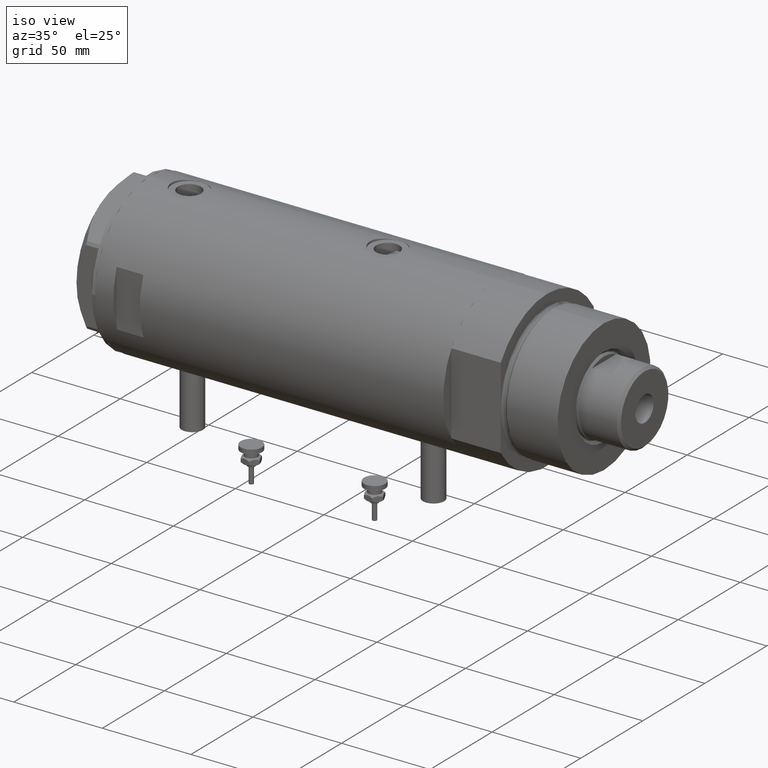
[diagram: clean part render]
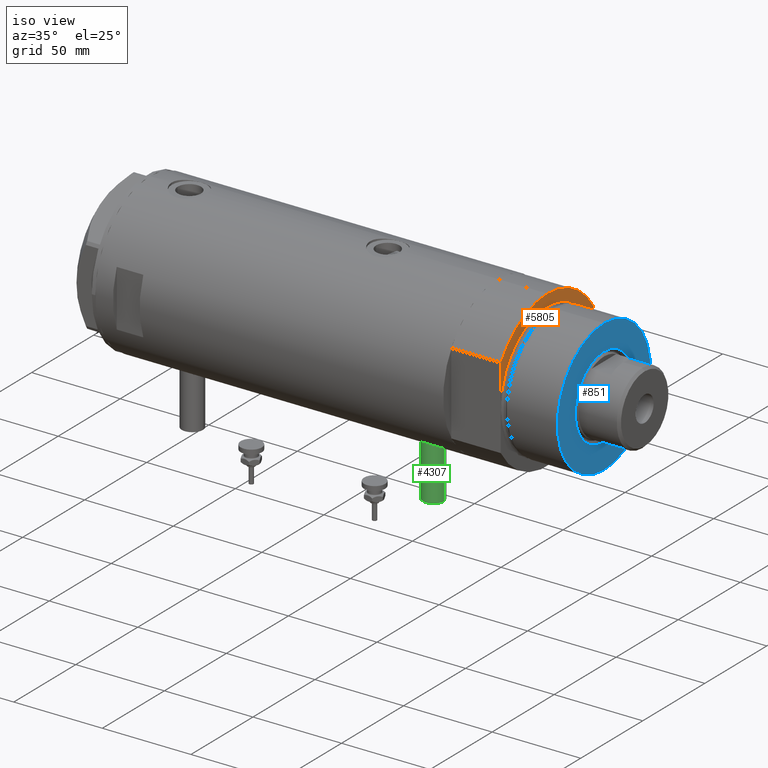
[diagram: same view with three faces highlighted in distinct colors, each labeled with its STEP entity id]
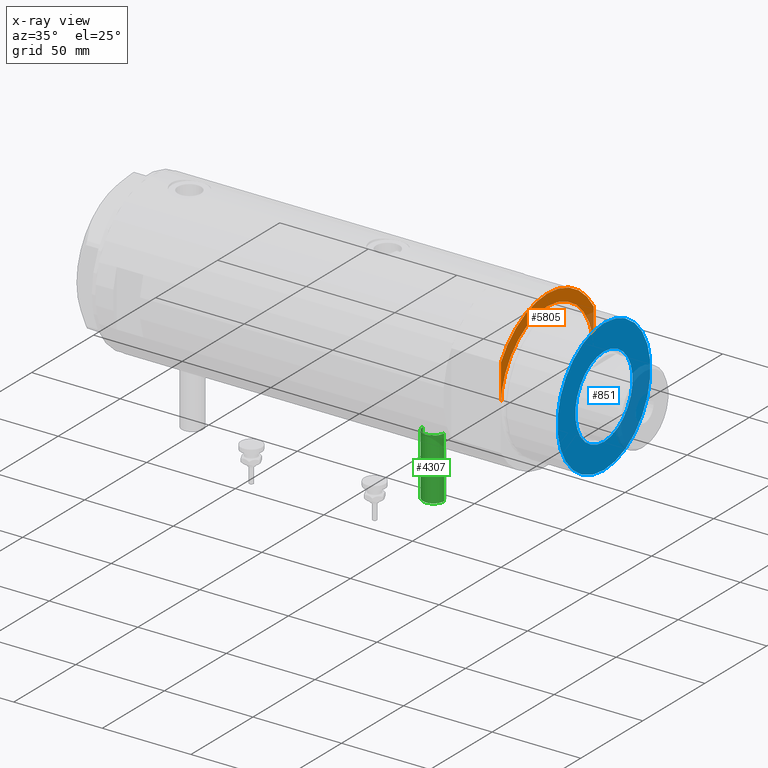
[diagram: x-ray of the same camera — body ghosted, the three highlighted faces saturated]
A machine part, iso view with three faces highlighted in distinct colors.
The next image is the same camera in x-ray (body ghosted, the three faces saturated) — at least one of them is partly hidden behind the body in this view.
Their STEP definitions:

[orange] entity #5805 — the highlighted planar face has unit normal (1, 0, -0).
#17 = CIRCLE ( 'NONE', #5366, 37.50000000000000000 ) ;
#192 = EDGE_CURVE ( 'NONE', #2227, #2510, #3287, .T. ) ;
#364 = ORIENTED_EDGE ( 'NONE', *, *, #192, .T. ) ;
#544 = LINE ( 'NONE', #1939, #1082 ) ;
#583 = CARTESIAN_POINT ( 'NONE',  ( -23.01629857296780557, -37.50000000000000000, 27.89999999999999858 ) ) ;
#598 = CARTESIAN_POINT ( 'NONE',  ( 0.000000000000000000, -37.50000000000000000, 27.89999999999999858 ) ) ;
#677 = DIRECTION ( 'NONE',  ( 0.000000000000000000, 0.000000000000000000, 1.000000000000000000 ) ) ;
#733 = ORIENTED_EDGE ( 'NONE', *, *, #2639, .T. ) ;
#774 = CARTESIAN_POINT ( 'NONE',  ( -44.00000000000000000, 0.000000000000000000, 27.89999999999999858 ) ) ;
#795 = PLANE ( 'NONE',  #5092 ) ;
#839 = CARTESIAN_POINT ( 'NONE',  ( -37.50000000000000000, 4.592425496802574367E-15, 27.89999999999999858 ) ) ;
#845 = EDGE_LOOP ( 'NONE', ( #1438, #733, #5381, #1055, #4642, #364 ) ) ;
#871 = VERTEX_POINT ( 'NONE', #2693 ) ;
#962 = CARTESIAN_POINT ( 'NONE',  ( 0.000000000000000000, 0.000000000000000000, 27.89999999999999858 ) ) ;
#1055 = ORIENTED_EDGE ( 'NONE', *, *, #3764, .F. ) ;
#1082 = VECTOR ( 'NONE', #3348, 1000.000000000000000 ) ;
#1272 = VECTOR ( 'NONE', #2434, 1000.000000000000000 ) ;
#1438 = ORIENTED_EDGE ( 'NONE', *, *, #1482, .F. ) ;
#1482 = EDGE_CURVE ( 'NONE', #4817, #2510, #4346, .T. ) ;
#1648 = DIRECTION ( 'NONE',  ( 1.000000000000000000, 0.000000000000000000, -0.000000000000000000 ) ) ;
#1710 = CARTESIAN_POINT ( 'NONE',  ( 0.000000000000000000, 0.000000000000000000, 27.89999999999999858 ) ) ;
#1939 = CARTESIAN_POINT ( 'NONE',  ( -23.01629857296780557, 37.50000000000000000, 27.89999999999999858 ) ) ;
#1950 = DIRECTION ( 'NONE',  ( -0.000000000000000000, -0.000000000000000000, -1.000000000000000000 ) ) ;
#2125 = DIRECTION ( 'NONE',  ( 1.000000000000000000, 0.000000000000000000, 0.000000000000000000 ) ) ;
#2227 = VERTEX_POINT ( 'NONE', #774 ) ;
#2249 = CARTESIAN_POINT ( 'NONE',  ( -23.01629857296780557, -37.50000000000000000, 27.89999999999999858 ) ) ;
#2432 = AXIS2_PLACEMENT_3D ( 'NONE', #3753, #1950, #3819 ) ;
#2434 = DIRECTION ( 'NONE',  ( -1.000000000000000000, -0.000000000000000000, -0.000000000000000000 ) ) ;
#2455 = EDGE_CURVE ( 'NONE', #871, #2227, #3199, .T. ) ;
#2510 = VERTEX_POINT ( 'NONE', #2249 ) ;
#2639 = EDGE_CURVE ( 'NONE', #4817, #4805, #5051, .T. ) ;
#2693 = CARTESIAN_POINT ( 'NONE',  ( -23.01629857296780557, 37.50000000000000000, 27.89999999999999858 ) ) ;
#2849 = VERTEX_POINT ( 'NONE', #5009 ) ;
#3106 = AXIS2_PLACEMENT_3D ( 'NONE', #5962, #3573, #4547 ) ;
#3199 = CIRCLE ( 'NONE', #3106, 44.00000000000000000 ) ;
#3287 = CIRCLE ( 'NONE', #3676, 44.00000000000000000 ) ;
#3348 = DIRECTION ( 'NONE',  ( 1.000000000000000000, 0.000000000000000000, 0.000000000000000000 ) ) ;
#3573 = DIRECTION ( 'NONE',  ( 0.000000000000000000, 0.000000000000000000, 1.000000000000000000 ) ) ;
#3590 = EDGE_CURVE ( 'NONE', #4805, #2849, #17, .T. ) ;
#3676 = AXIS2_PLACEMENT_3D ( 'NONE', #962, #5650, #5071 ) ;
#3753 = CARTESIAN_POINT ( 'NONE',  ( 0.000000000000000000, 0.000000000000000000, 27.89999999999999858 ) ) ;
#3764 = EDGE_CURVE ( 'NONE', #871, #2849, #544, .T. ) ;
#3819 = DIRECTION ( 'NONE',  ( 1.000000000000000000, 0.000000000000000000, 0.000000000000000000 ) ) ;
#4346 = LINE ( 'NONE', #583, #1272 ) ;
#4547 = DIRECTION ( 'NONE',  ( 1.000000000000000000, 0.000000000000000000, 0.000000000000000000 ) ) ;
#4642 = ORIENTED_EDGE ( 'NONE', *, *, #2455, .T. ) ;
#4805 = VERTEX_POINT ( 'NONE', #839 ) ;
#4817 = VERTEX_POINT ( 'NONE', #598 ) ;
#5009 = CARTESIAN_POINT ( 'NONE',  ( 0.000000000000000000, 37.50000000000000000, 27.89999999999999858 ) ) ;
#5051 = CIRCLE ( 'NONE', #2432, 37.50000000000000000 ) ;
#5071 = DIRECTION ( 'NONE',  ( 1.000000000000000000, 0.000000000000000000, 0.000000000000000000 ) ) ;
#5092 = AXIS2_PLACEMENT_3D ( 'NONE', #1710, #677, #1648 ) ;
#5366 = AXIS2_PLACEMENT_3D ( 'NONE', #5867, #5414, #2125 ) ;
#5381 = ORIENTED_EDGE ( 'NONE', *, *, #3590, .T. ) ;
#5389 = FACE_OUTER_BOUND ( 'NONE', #845, .T. ) ;
#5414 = DIRECTION ( 'NONE',  ( -0.000000000000000000, -0.000000000000000000, -1.000000000000000000 ) ) ;
#5650 = DIRECTION ( 'NONE',  ( 0.000000000000000000, 0.000000000000000000, 1.000000000000000000 ) ) ;
#5805 = ADVANCED_FACE ( 'NONE', ( #5389 ), #795, .T. ) ;
#5867 = CARTESIAN_POINT ( 'NONE',  ( 0.000000000000000000, 0.000000000000000000, 27.89999999999999858 ) ) ;
#5962 = CARTESIAN_POINT ( 'NONE',  ( 0.000000000000000000, 0.000000000000000000, 27.89999999999999858 ) ) ;

[blue] entity #851 — the highlighted planar face has unit normal (1, 0, -0).
#259 = CARTESIAN_POINT ( 'NONE',  ( 37.50000000000000711, 4.592425496802575156E-15, 59.89999999999999147 ) ) ;
#474 = DIRECTION ( 'NONE',  ( 1.000000000000000000, 0.000000000000000000, 0.000000000000000000 ) ) ;
#592 = DIRECTION ( 'NONE',  ( 1.000000000000000000, 0.000000000000000000, 0.000000000000000000 ) ) ;
#664 = CARTESIAN_POINT ( 'NONE',  ( 0.000000000000000000, 0.000000000000000000, 59.89999999999999147 ) ) ;
#747 = FACE_BOUND ( 'NONE', #4608, .T. ) ;
#851 = ADVANCED_FACE ( 'NONE', ( #747, #5884 ), #5814, .T. ) ;
#995 = CIRCLE ( 'NONE', #3902, 23.05000000000002913 ) ;
#1171 = CIRCLE ( 'NONE', #5354, 37.50000000000000711 ) ;
#1339 = CARTESIAN_POINT ( 'NONE',  ( 0.000000000000000000, 0.000000000000000000, 59.89999999999999147 ) ) ;
#1368 = CARTESIAN_POINT ( 'NONE',  ( -37.50000000000000711, 0.000000000000000000, 59.89999999999999147 ) ) ;
#1491 = CIRCLE ( 'NONE', #4766, 37.50000000000000711 ) ;
#1573 = DIRECTION ( 'NONE',  ( 1.000000000000000000, 0.000000000000000000, 0.000000000000000000 ) ) ;
#1690 = DIRECTION ( 'NONE',  ( 1.000000000000000000, 0.000000000000000000, -0.000000000000000000 ) ) ;
#1730 = ORIENTED_EDGE ( 'NONE', *, *, #3292, .T. ) ;
#1813 = ORIENTED_EDGE ( 'NONE', *, *, #4232, .T. ) ;
#1827 = VERTEX_POINT ( 'NONE', #259 ) ;
#1996 = VERTEX_POINT ( 'NONE', #1368 ) ;
#2299 = DIRECTION ( 'NONE',  ( 0.000000000000000000, 0.000000000000000000, 1.000000000000000000 ) ) ;
#2444 = CIRCLE ( 'NONE', #4185, 23.05000000000002913 ) ;
#2467 = VERTEX_POINT ( 'NONE', #2652 ) ;
#2645 = EDGE_LOOP ( 'NONE', ( #1813, #5054 ) ) ;
#2652 = CARTESIAN_POINT ( 'NONE',  ( -23.05000000000002913, 2.822810872034651791E-15, 59.89999999999999147 ) ) ;
#2926 = CARTESIAN_POINT ( 'NONE',  ( 0.000000000000000000, 0.000000000000000000, 59.89999999999999147 ) ) ;
#3180 = EDGE_CURVE ( 'NONE', #1827, #1996, #1171, .T. ) ;
#3243 = CARTESIAN_POINT ( 'NONE',  ( 23.05000000000002913, 0.000000000000000000, 59.89999999999999147 ) ) ;
#3292 = EDGE_CURVE ( 'NONE', #3320, #2467, #2444, .T. ) ;
#3294 = AXIS2_PLACEMENT_3D ( 'NONE', #4863, #5848, #1690 ) ;
#3320 = VERTEX_POINT ( 'NONE', #3243 ) ;
#3350 = CARTESIAN_POINT ( 'NONE',  ( 0.000000000000000000, 0.000000000000000000, 59.89999999999999147 ) ) ;
#3701 = DIRECTION ( 'NONE',  ( -0.000000000000000000, -0.000000000000000000, -1.000000000000000000 ) ) ;
#3902 = AXIS2_PLACEMENT_3D ( 'NONE', #664, #3932, #1573 ) ;
#3906 = ORIENTED_EDGE ( 'NONE', *, *, #4270, .T. ) ;
#3932 = DIRECTION ( 'NONE',  ( -0.000000000000000000, -0.000000000000000000, -1.000000000000000000 ) ) ;
#4064 = DIRECTION ( 'NONE',  ( 1.000000000000000000, 0.000000000000000000, 0.000000000000000000 ) ) ;
#4185 = AXIS2_PLACEMENT_3D ( 'NONE', #1339, #3701, #4064 ) ;
#4232 = EDGE_CURVE ( 'NONE', #1996, #1827, #1491, .T. ) ;
#4270 = EDGE_CURVE ( 'NONE', #2467, #3320, #995, .T. ) ;
#4608 = EDGE_LOOP ( 'NONE', ( #1730, #3906 ) ) ;
#4627 = DIRECTION ( 'NONE',  ( 0.000000000000000000, 0.000000000000000000, 1.000000000000000000 ) ) ;
#4766 = AXIS2_PLACEMENT_3D ( 'NONE', #3350, #4627, #474 ) ;
#4863 = CARTESIAN_POINT ( 'NONE',  ( 0.000000000000000000, 0.000000000000000000, 59.89999999999999147 ) ) ;
#5054 = ORIENTED_EDGE ( 'NONE', *, *, #3180, .T. ) ;
#5354 = AXIS2_PLACEMENT_3D ( 'NONE', #2926, #2299, #592 ) ;
#5814 = PLANE ( 'NONE',  #3294 ) ;
#5848 = DIRECTION ( 'NONE',  ( 0.000000000000000000, 0.000000000000000000, 1.000000000000000000 ) ) ;
#5884 = FACE_OUTER_BOUND ( 'NONE', #2645, .T. ) ;

[green] entity #4307 — the highlighted cylindrical surface (edge-blend (fillet) strip) has radius 6 mm, axis along (0, 0, 1).
#129 = VECTOR ( 'NONE', #2557, 1000.000000000000000 ) ;
#205 = CARTESIAN_POINT ( 'NONE',  ( -77.50000000000000000, 0.000000000000000000, -61.90000000000001279 ) ) ;
#268 = CYLINDRICAL_SURFACE ( 'NONE', #1382, 6.000000000000005329 ) ;
#483 = CARTESIAN_POINT ( 'NONE',  ( -42.79999999999999716, 7.347880794884119736E-16, -55.90000000000000568 ) ) ;
#990 = DIRECTION ( 'NONE',  ( 0.000000000000000000, 0.000000000000000000, 1.000000000000000000 ) ) ;
#1048 = CARTESIAN_POINT ( 'NONE',  ( -42.79999999999999716, 0.000000000000000000, -61.90000000000001279 ) ) ;
#1138 = ORIENTED_EDGE ( 'NONE', *, *, #3773, .T. ) ;
#1212 = LINE ( 'NONE', #4881, #2826 ) ;
#1246 = CARTESIAN_POINT ( 'NONE',  ( -77.50000000000000000, 7.347880794884119736E-16, -55.90000000000000568 ) ) ;
#1323 = ORIENTED_EDGE ( 'NONE', *, *, #1520, .T. ) ;
#1382 = AXIS2_PLACEMENT_3D ( 'NONE', #205, #1635, #2572 ) ;
#1520 = EDGE_CURVE ( 'NONE', #1845, #5909, #1212, .T. ) ;
#1543 = EDGE_LOOP ( 'NONE', ( #4599, #4849, #1323, #1138 ) ) ;
#1635 = DIRECTION ( 'NONE',  ( 1.000000000000000000, -0.000000000000000000, -0.000000000000000000 ) ) ;
#1845 = VERTEX_POINT ( 'NONE', #2655 ) ;
#2503 = LINE ( 'NONE', #3037, #129 ) ;
#2557 = DIRECTION ( 'NONE',  ( 1.000000000000000000, -0.000000000000000000, -0.000000000000000000 ) ) ;
#2572 = DIRECTION ( 'NONE',  ( 0.000000000000000000, 0.000000000000000000, -1.000000000000000000 ) ) ;
#2655 = CARTESIAN_POINT ( 'NONE',  ( -77.50000000000000000, 0.000000000000000000, -67.90000000000001990 ) ) ;
#2789 = DIRECTION ( 'NONE',  ( -1.000000000000000000, 0.000000000000000000, 0.000000000000000000 ) ) ;
#2826 = VECTOR ( 'NONE', #4404, 1000.000000000000000 ) ;
#3037 = CARTESIAN_POINT ( 'NONE',  ( -77.50000000000000000, 7.347880794884122694E-16, -55.90000000000000568 ) ) ;
#3187 = DIRECTION ( 'NONE',  ( -1.000000000000000000, 0.000000000000000000, 0.000000000000000000 ) ) ;
#3286 = EDGE_CURVE ( 'NONE', #1845, #4920, #4963, .T. ) ;
#3305 = AXIS2_PLACEMENT_3D ( 'NONE', #4101, #3187, #5991 ) ;
#3466 = FACE_OUTER_BOUND ( 'NONE', #1543, .T. ) ;
#3773 = EDGE_CURVE ( 'NONE', #5909, #5168, #4969, .T. ) ;
#4101 = CARTESIAN_POINT ( 'NONE',  ( -77.50000000000000000, 0.000000000000000000, -61.90000000000001279 ) ) ;
#4307 = ADVANCED_FACE ( 'NONE', ( #3466 ), #268, .T. ) ;
#4404 = DIRECTION ( 'NONE',  ( 1.000000000000000000, -0.000000000000000000, -0.000000000000000000 ) ) ;
#4526 = EDGE_CURVE ( 'NONE', #4920, #5168, #2503, .T. ) ;
#4599 = ORIENTED_EDGE ( 'NONE', *, *, #4526, .F. ) ;
#4669 = CARTESIAN_POINT ( 'NONE',  ( -42.79999999999999716, 0.000000000000000000, -67.90000000000001990 ) ) ;
#4849 = ORIENTED_EDGE ( 'NONE', *, *, #3286, .F. ) ;
#4881 = CARTESIAN_POINT ( 'NONE',  ( -77.50000000000000000, 0.000000000000000000, -67.90000000000001990 ) ) ;
#4920 = VERTEX_POINT ( 'NONE', #1246 ) ;
#4963 = CIRCLE ( 'NONE', #3305, 6.000000000000005329 ) ;
#4969 = CIRCLE ( 'NONE', #5747, 6.000000000000005329 ) ;
#5168 = VERTEX_POINT ( 'NONE', #483 ) ;
#5747 = AXIS2_PLACEMENT_3D ( 'NONE', #1048, #2789, #990 ) ;
#5909 = VERTEX_POINT ( 'NONE', #4669 ) ;
#5991 = DIRECTION ( 'NONE',  ( 0.000000000000000000, 0.000000000000000000, 1.000000000000000000 ) ) ;